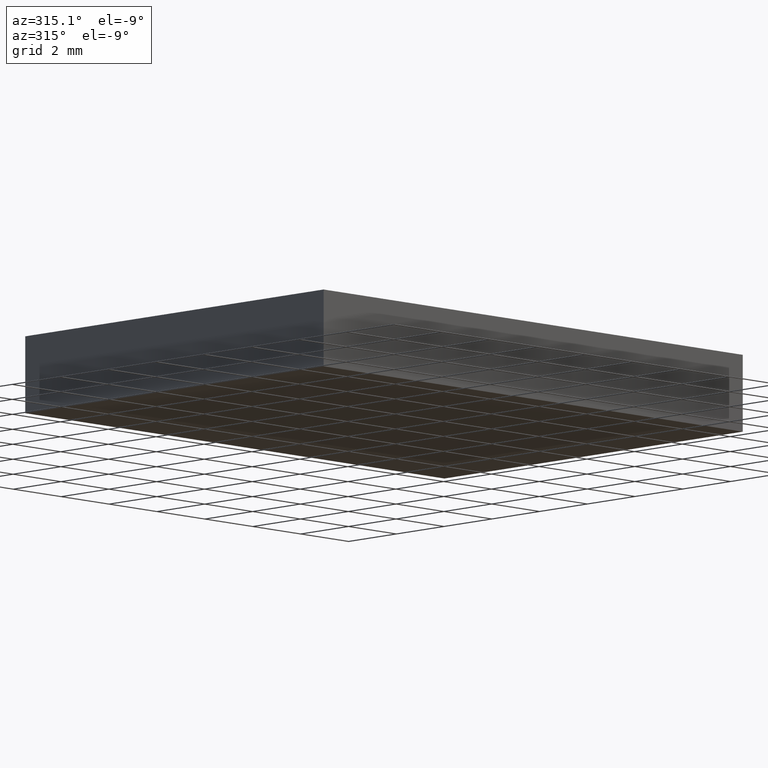
[diagram: clean part render]
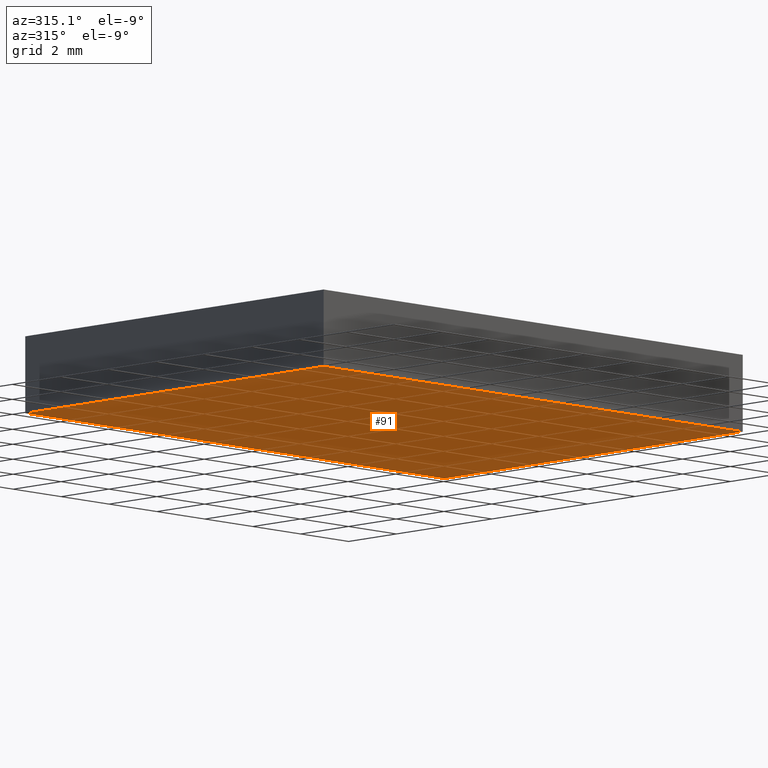
[diagram: same view with one face highlighted and labeled with its STEP entity id]
A machine part, auxiliary view. The second image highlights one B-rep face of the part: STEP entity #91.
In plain terms, the highlighted planar face has unit normal (0, 0, 1).
Its self-contained STEP definition (entity closure, byte-faithful):
#7 = CARTESIAN_POINT ( 'NONE',  ( 63.05749197114184300, 24.53162091726329700, 0.0000000000000000000 ) ) ;
#15 = ORIENTED_EDGE ( 'NONE', *, *, #56, .F. ) ;
#17 = DIRECTION ( 'NONE',  ( 1.110223024625156700E-015, 1.000000000000000000, -0.0000000000000000000 ) ) ;
#19 = PLANE ( 'NONE',  #35 ) ;
#21 = CARTESIAN_POINT ( 'NONE',  ( 45.55749197114184300, 37.03162091726329000, 0.0000000000000000000 ) ) ;
#30 = VECTOR ( 'NONE', #161, 1000.000000000000000 ) ;
#31 = ORIENTED_EDGE ( 'NONE', *, *, #133, .F. ) ;
#35 = AXIS2_PLACEMENT_3D ( 'NONE', #123, #38, #158 ) ;
#38 = DIRECTION ( 'NONE',  ( 0.0000000000000000000, 0.0000000000000000000, 1.000000000000000000 ) ) ;
#39 = LINE ( 'NONE', #98, #67 ) ;
#44 = FACE_OUTER_BOUND ( 'NONE', #122, .T. ) ;
#53 = LINE ( 'NONE', #116, #30 ) ;
#56 = EDGE_CURVE ( 'NONE', #88, #181, #39, .T. ) ;
#57 = ORIENTED_EDGE ( 'NONE', *, *, #82, .F. ) ;
#64 = DIRECTION ( 'NONE',  ( -1.000000000000000000, -3.965082230804128700E-016, -0.0000000000000000000 ) ) ;
#67 = VECTOR ( 'NONE', #17, 1000.000000000000000 ) ;
#79 = CARTESIAN_POINT ( 'NONE',  ( 63.05749197114185700, 37.03162091726329700, 0.0000000000000000000 ) ) ;
#80 = CARTESIAN_POINT ( 'NONE',  ( 45.55749197114184300, 24.53162091726330000, 0.0000000000000000000 ) ) ;
#81 = VECTOR ( 'NONE', #64, 1000.000000000000000 ) ;
#82 = EDGE_CURVE ( 'NONE', #187, #145, #53, .T. ) ;
#86 = ORIENTED_EDGE ( 'NONE', *, *, #129, .F. ) ;
#88 = VERTEX_POINT ( 'NONE', #7 ) ;
#89 = CARTESIAN_POINT ( 'NONE',  ( 45.55749197114184300, 37.03162091726329000, 0.0000000000000000000 ) ) ;
#91 = ADVANCED_FACE ( 'NONE', ( #44 ), #19, .F. ) ;
#98 = CARTESIAN_POINT ( 'NONE',  ( 63.05749197114185700, 37.03162091726329700, 0.0000000000000000000 ) ) ;
#107 = CARTESIAN_POINT ( 'NONE',  ( 45.55749197114184300, 24.53162091726330000, 0.0000000000000000000 ) ) ;
#116 = CARTESIAN_POINT ( 'NONE',  ( 45.55749197114184300, 37.03162091726329000, 0.0000000000000000000 ) ) ;
#122 = EDGE_LOOP ( 'NONE', ( #57, #86, #15, #31 ) ) ;
#123 = CARTESIAN_POINT ( 'NONE',  ( 0.0000000000000000000, 0.0000000000000000000, 0.0000000000000000000 ) ) ;
#128 = LINE ( 'NONE', #89, #81 ) ;
#129 = EDGE_CURVE ( 'NONE', #181, #187, #128, .T. ) ;
#133 = EDGE_CURVE ( 'NONE', #145, #88, #193, .T. ) ;
#145 = VERTEX_POINT ( 'NONE', #107 ) ;
#156 = DIRECTION ( 'NONE',  ( 1.000000000000000000, -1.982541115402065800E-016, 0.0000000000000000000 ) ) ;
#158 = DIRECTION ( 'NONE',  ( 1.000000000000000000, 0.0000000000000000000, -0.0000000000000000000 ) ) ;
#161 = DIRECTION ( 'NONE',  ( 0.0000000000000000000, -1.000000000000000000, 0.0000000000000000000 ) ) ;
#163 = VECTOR ( 'NONE', #156, 1000.000000000000000 ) ;
#181 = VERTEX_POINT ( 'NONE', #79 ) ;
#187 = VERTEX_POINT ( 'NONE', #21 ) ;
#193 = LINE ( 'NONE', #80, #163 ) ;